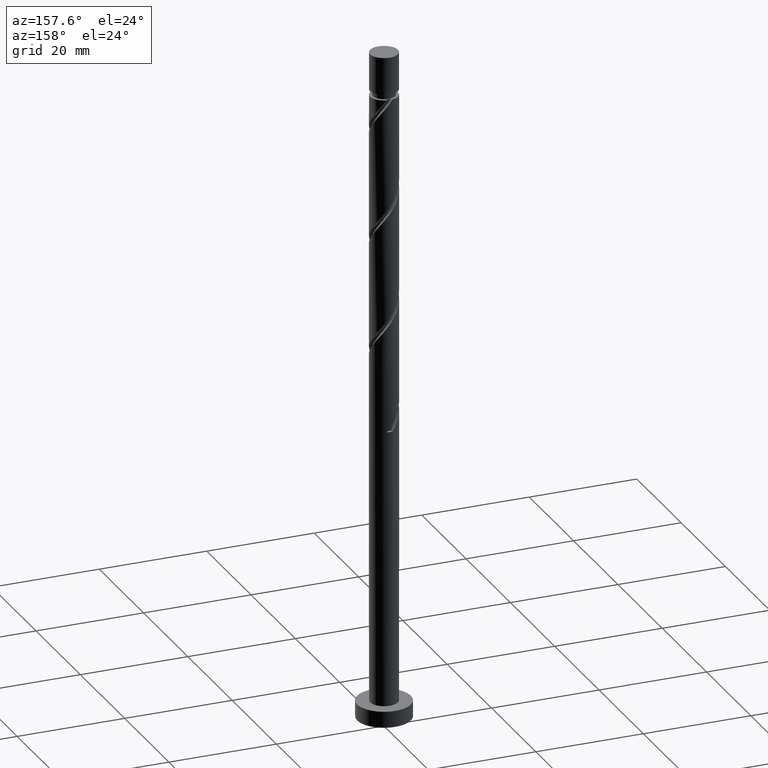
[diagram: clean part render]
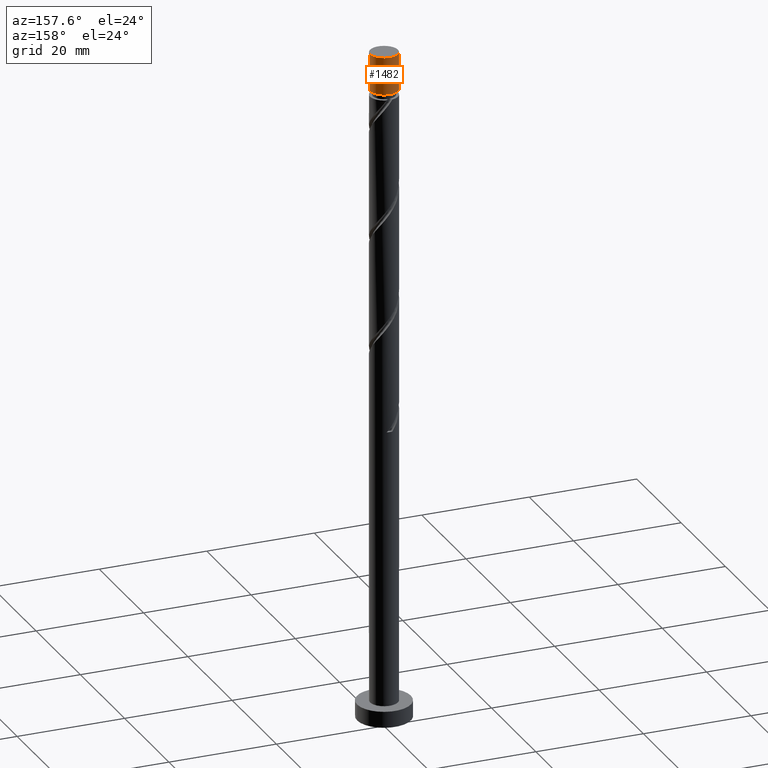
[diagram: same view with one face highlighted and labeled with its STEP entity id]
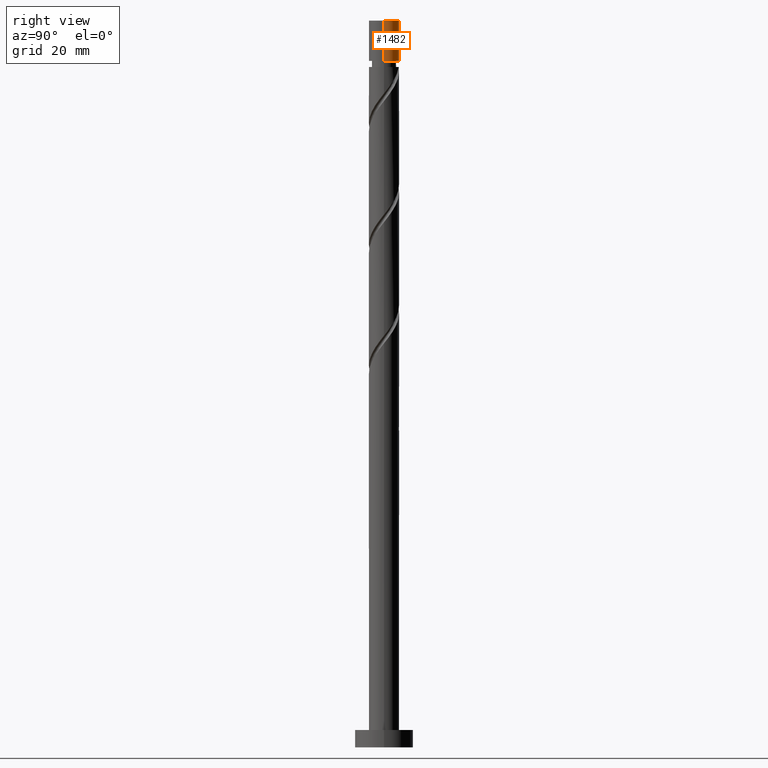
[diagram: same view with one face highlighted and labeled with its STEP entity id]
A machine part, auxiliary view. The second image highlights one B-rep face of the part: STEP entity #1482.
A second angle (right view) of the same face is appended — the face is thin or edge-on in the first view.
In plain terms, the highlighted cylindrical surface (edge-blend (fillet) strip) has radius 2.6 mm, axis along (-0, -0, -1).
Its self-contained STEP definition (entity closure, byte-faithful):
#23 = AXIS2_PLACEMENT_3D ( 'NONE', #478, #259, #974 ) ;
#33 = EDGE_LOOP ( 'NONE', ( #415, #1035, #261, #1370 ) ) ;
#41 = DIRECTION ( 'NONE',  ( -1.000000000000000000, 0.000000000000000000, 0.000000000000000000 ) ) ;
#45 = CARTESIAN_POINT ( 'NONE',  ( -2.599999999999998312, 0.000000000000000000, 118.0675342190393877 ) ) ;
#103 = CARTESIAN_POINT ( 'NONE',  ( 0.000000000000000000, 0.000000000000000000, 118.0675342190393877 ) ) ;
#131 = EDGE_CURVE ( 'NONE', #252, #549, #1462, .T. ) ;
#166 = LINE ( 'NONE', #724, #1257 ) ;
#252 = VERTEX_POINT ( 'NONE', #429 ) ;
#259 = DIRECTION ( 'NONE',  ( 0.000000000000000000, 0.000000000000000000, 1.000000000000000000 ) ) ;
#261 = ORIENTED_EDGE ( 'NONE', *, *, #326, .F. ) ;
#326 = EDGE_CURVE ( 'NONE', #598, #1179, #676, .T. ) ;
#355 = CARTESIAN_POINT ( 'NONE',  ( 2.600000000000000089, 3.184081677783117698E-16, 125.0000000000000000 ) ) ;
#415 = ORIENTED_EDGE ( 'NONE', *, *, #131, .F. ) ;
#429 = CARTESIAN_POINT ( 'NONE',  ( 2.600000000000000089, 3.184081677783117698E-16, 125.0000000000000000 ) ) ;
#478 = CARTESIAN_POINT ( 'NONE',  ( 0.000000000000000000, 0.000000000000000000, 125.0000000000000000 ) ) ;
#549 = VERTEX_POINT ( 'NONE', #596 ) ;
#592 = VECTOR ( 'NONE', #858, 1000.000000000000000 ) ;
#596 = CARTESIAN_POINT ( 'NONE',  ( -2.600000000000000089, 0.000000000000000000, 125.0000000000000000 ) ) ;
#598 = VERTEX_POINT ( 'NONE', #45 ) ;
#650 = CYLINDRICAL_SURFACE ( 'NONE', #1385, 2.600000000000000089 ) ;
#676 = CIRCLE ( 'NONE', #743, 2.599999999999998312 ) ;
#686 = DIRECTION ( 'NONE',  ( -0.000000000000000000, -0.000000000000000000, -1.000000000000000000 ) ) ;
#711 = EDGE_CURVE ( 'NONE', #549, #598, #166, .T. ) ;
#724 = CARTESIAN_POINT ( 'NONE',  ( -2.600000000000000089, 0.000000000000000000, 125.0000000000000000 ) ) ;
#743 = AXIS2_PLACEMENT_3D ( 'NONE', #103, #686, #1537 ) ;
#828 = CARTESIAN_POINT ( 'NONE',  ( 2.599999999999998312, 3.184081677783116712E-16, 118.0675342190393877 ) ) ;
#833 = DIRECTION ( 'NONE',  ( -0.000000000000000000, -0.000000000000000000, -1.000000000000000000 ) ) ;
#858 = DIRECTION ( 'NONE',  ( -0.000000000000000000, -0.000000000000000000, -1.000000000000000000 ) ) ;
#864 = DIRECTION ( 'NONE',  ( -0.000000000000000000, -0.000000000000000000, -1.000000000000000000 ) ) ;
#884 = FACE_OUTER_BOUND ( 'NONE', #33, .T. ) ;
#974 = DIRECTION ( 'NONE',  ( 1.000000000000000000, 0.000000000000000000, 0.000000000000000000 ) ) ;
#1035 = ORIENTED_EDGE ( 'NONE', *, *, #1133, .T. ) ;
#1133 = EDGE_CURVE ( 'NONE', #252, #1179, #1203, .T. ) ;
#1144 = CARTESIAN_POINT ( 'NONE',  ( 0.000000000000000000, 0.000000000000000000, 125.0000000000000000 ) ) ;
#1179 = VERTEX_POINT ( 'NONE', #828 ) ;
#1203 = LINE ( 'NONE', #355, #592 ) ;
#1257 = VECTOR ( 'NONE', #833, 1000.000000000000000 ) ;
#1370 = ORIENTED_EDGE ( 'NONE', *, *, #711, .F. ) ;
#1385 = AXIS2_PLACEMENT_3D ( 'NONE', #1144, #864, #41 ) ;
#1462 = CIRCLE ( 'NONE', #23, 2.600000000000000089 ) ;
#1482 = ADVANCED_FACE ( 'NONE', ( #884 ), #650, .T. ) ;
#1537 = DIRECTION ( 'NONE',  ( -1.000000000000000000, 0.000000000000000000, 0.000000000000000000 ) ) ;